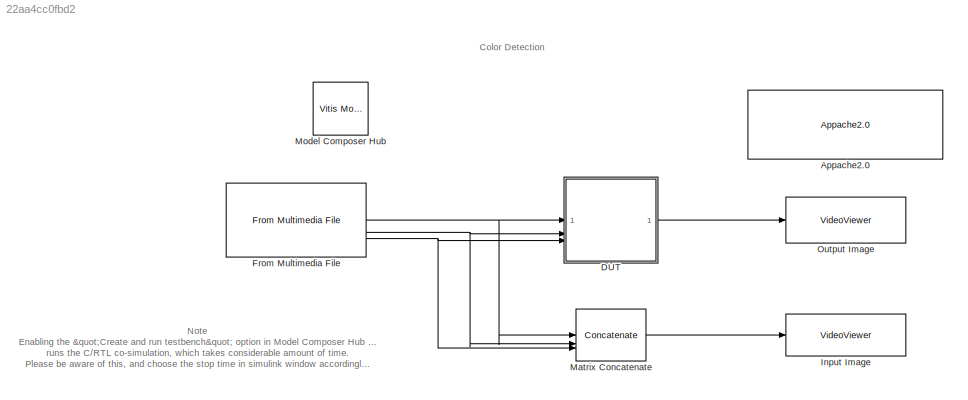
MODEL slx_22aa4cc0fbd2
KIND model
CONFIG AbsTol = auto
CONFIG EnableMultiTasking = off
CONFIG FixedStep = auto
CONFIG MaxStep = auto
CONFIG MinStep = auto
CONFIG PostLoadFcn = xmcHubUpdateInstalledDevice(gcs);
CONFIG RelTol = 1e-3
CONFIG SampleTimeConstraint = Unconstrained
CONFIG SolverName = VariableStepAuto
CONFIG StartTime = 0.0
CONFIG StopTime = 10.0
BLOCK [Reference] Appache2.0  REF=vmcUtilities/Appache2.0
  SourceBlock = vmcUtilities/Appache2.0
  SourceType = DocBlock
  UserDataPersistent = on
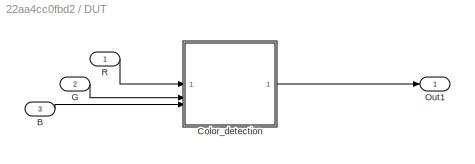
BLOCK [SubSystem] DUT
BLOCK [Inport] DUT/B
  Port = 3
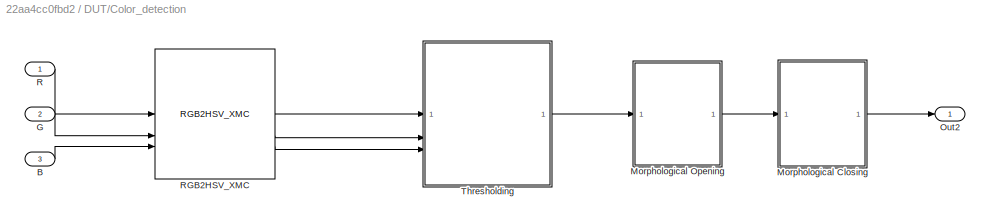
BLOCK [SubSystem] DUT/Color_detection
BLOCK [Inport] DUT/Color_detection/B
  Port = 3
BLOCK [Inport] DUT/Color_detection/G
  Port = 2
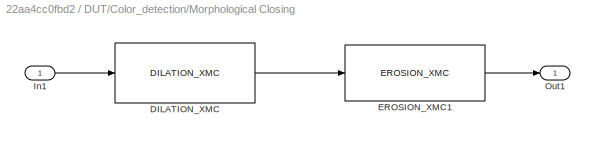
BLOCK [SubSystem] DUT/Color_detection/Morphological Closing
BLOCK [Reference] DUT/Color_detection/Morphological Closing/DILATION_XMC  REF=color_detection_lib/DILATION_XMC  (lib defined in slx_f1d33c2a9f02)
  SourceBlock = color_detection_lib/DILATION_XMC
  SourceType = Import Function
BLOCK [Reference] DUT/Color_detection/Morphological Closing/EROSION_XMC1  REF=color_detection_lib/EROSION_XMC  (lib defined in slx_f1d33c2a9f02)
  SourceBlock = color_detection_lib/EROSION_XMC
  SourceType = Import Function
BLOCK [Inport] DUT/Color_detection/Morphological Closing/In1
BLOCK [Outport] DUT/Color_detection/Morphological Closing/Out1
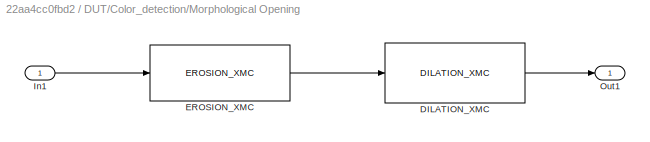
BLOCK [SubSystem] DUT/Color_detection/Morphological Opening
BLOCK [Reference] DUT/Color_detection/Morphological Opening/DILATION_XMC  REF=color_detection_lib/DILATION_XMC  (lib defined in slx_f1d33c2a9f02)
  SourceBlock = color_detection_lib/DILATION_XMC
  SourceType = Import Function
BLOCK [Reference] DUT/Color_detection/Morphological Opening/EROSION_XMC  REF=color_detection_lib/EROSION_XMC  (lib defined in slx_f1d33c2a9f02)
  SourceBlock = color_detection_lib/EROSION_XMC
  SourceType = Import Function
BLOCK [Inport] DUT/Color_detection/Morphological Opening/In1
BLOCK [Outport] DUT/Color_detection/Morphological Opening/Out1
BLOCK [Outport] DUT/Color_detection/Out2
BLOCK [Inport] DUT/Color_detection/R
BLOCK [Reference] DUT/Color_detection/RGB2HSV_XMC  REF=color_detection_lib/RGB2HSV_XMC  (lib defined in slx_f1d33c2a9f02)
  SourceBlock = color_detection_lib/RGB2HSV_XMC
  SourceType = Import Function
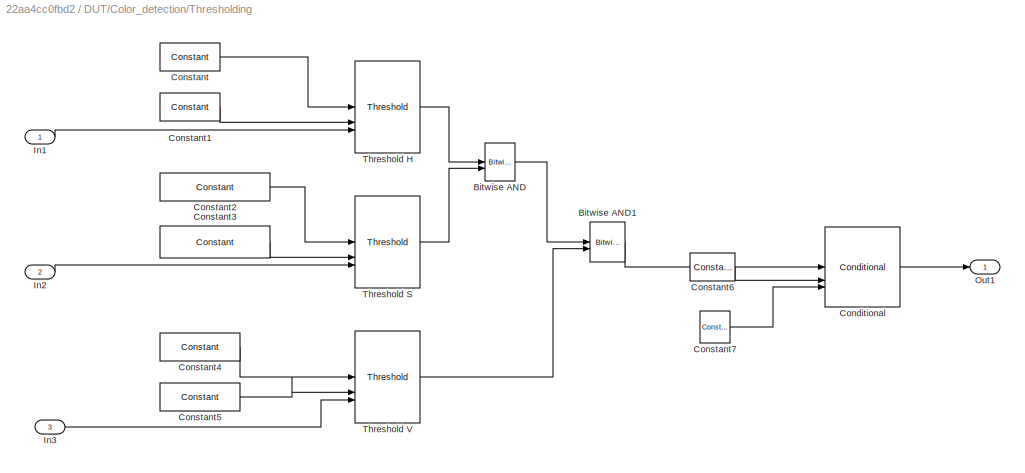
BLOCK [SubSystem] DUT/Color_detection/Thresholding
BLOCK [Reference] DUT/Color_detection/Thresholding/Bitwise AND  REF=hlsBasic/Bitwise AND
  SourceBlock = hlsBasic/Bitwise AND
  SourceType = Bitwise AND
BLOCK [Reference] DUT/Color_detection/Thresholding/Bitwise AND1  REF=hlsBasic/Bitwise AND
  SourceBlock = hlsBasic/Bitwise AND
  SourceType = Bitwise AND
BLOCK [Reference] DUT/Color_detection/Thresholding/Conditional  REF=hlsBasic/Conditional
  SourceBlock = hlsBasic/Conditional
  SourceType = Conditional Operator
BLOCK [Reference] DUT/Color_detection/Thresholding/Constant  REF=hlsBasic/Constant
  SourceBlock = hlsBasic/Constant
  SourceType = Constant
BLOCK [Reference] DUT/Color_detection/Thresholding/Constant1  REF=hlsBasic/Constant
  SourceBlock = hlsBasic/Constant
  SourceType = Constant
BLOCK [Reference] DUT/Color_detection/Thresholding/Constant2  REF=hlsBasic/Constant
  SourceBlock = hlsBasic/Constant
  SourceType = Constant
BLOCK [Reference] DUT/Color_detection/Thresholding/Constant3  REF=hlsBasic/Constant
  SourceBlock = hlsBasic/Constant
  SourceType = Constant
BLOCK [Reference] DUT/Color_detection/Thresholding/Constant4  REF=hlsBasic/Constant
  SourceBlock = hlsBasic/Constant
  SourceType = Constant
BLOCK [Reference] DUT/Color_detection/Thresholding/Constant5  REF=hlsBasic/Constant
  SourceBlock = hlsBasic/Constant
  SourceType = Constant
BLOCK [Reference] DUT/Color_detection/Thresholding/Constant6  REF=hlsBasic/Constant
  SourceBlock = hlsBasic/Constant
  SourceType = Constant
BLOCK [Reference] DUT/Color_detection/Thresholding/Constant7  REF=hlsBasic/Constant
  SourceBlock = hlsBasic/Constant
  SourceType = Constant
BLOCK [Inport] DUT/Color_detection/Thresholding/In1
BLOCK [Inport] DUT/Color_detection/Thresholding/In2
  Port = 2
BLOCK [Inport] DUT/Color_detection/Thresholding/In3
  Port = 3
BLOCK [Outport] DUT/Color_detection/Thresholding/Out1
BLOCK [Reference] DUT/Color_detection/Thresholding/Threshold H  REF=color_detection_lib/Threshold  (lib defined in slx_f1d33c2a9f02)
  SourceBlock = color_detection_lib/Threshold
BLOCK [Reference] DUT/Color_detection/Thresholding/Threshold S  REF=color_detection_lib/Threshold  (lib defined in slx_f1d33c2a9f02)
  SourceBlock = color_detection_lib/Threshold
BLOCK [Reference] DUT/Color_detection/Thresholding/Threshold V  REF=color_detection_lib/Threshold  (lib defined in slx_f1d33c2a9f02)
  SourceBlock = color_detection_lib/Threshold
BLOCK [Inport] DUT/G
  Port = 2
BLOCK [Outport] DUT/Out1
BLOCK [Inport] DUT/R
BLOCK [Reference] From Multimedia File  REF=dspvision/From Multimedia File
  SourceBlock = dspvision/From Multimedia File
  SourceType = From Multimedia File
BLOCK [VideoViewer] Input Image
  FigPos = [425 718 1006 554]
  ScopeSpecificationString = vipscopes.VideoViewerScopeCfg('CurrentConfiguration', extmgr.ConfigurationSet(extmgr.Configuration('Core','General UI',true),extmgr.Configuration('Core','Source UI',true),extmgr.Configuration('Sources','WiredSimulink',true),extmgr.Configuration('Visuals','Video',true),extmgr.Configuration('Tools','Image Navigation Tools',true,'Magnification',0.67),extmgr.Configuration('Tools','Image Tool',true),ex...<+123ch>
  colormapValue = gray(256)
BLOCK [Concatenate] Matrix Concatenate
  ConcatenateDimension = 3
  Mode = Multidimensional array
  NumInputs = 3
BLOCK [Reference] Model Composer Hub  REF=vmcUtilities/Vitis Model Composer Hub
  SourceBlock = vmcUtilities/Vitis Model Composer Hub
  SourceType = VMC Hub
  Tag = genX
  UserDataPersistent = on
BLOCK [VideoViewer] Output Image
  FigPos = [33 747 919 556]
  ScopeSpecificationString = vipscopes.VideoViewerScopeCfg('CurrentConfiguration', extmgr.ConfigurationSet(extmgr.Configuration('Core','General UI',true),extmgr.Configuration('Core','Source UI',true),extmgr.Configuration('Sources','WiredSimulink',true),extmgr.Configuration('Visuals','Video',true),extmgr.Configuration('Tools','Image Navigation Tools',true,'Magnification',0.67),extmgr.Configuration('Tools','Image Tool',true),ex...<+121ch>
  colormapValue = gray(256)
ANNOTATION (root): Note Enabling the "Create and run testbench" option in Model Composer Hub block runs the C/RTL co-simulation, which takes considerable amount of time. Please be aware of this, and choose the stop time in simulink window accordingly.
ANNOTATION (root): Color Detection
LINE DUT/B:1 -> DUT/Color_detection:3
LINE DUT/Color_detection/B:1 -> DUT/Color_detection/RGB2HSV_XMC:3
LINE DUT/Color_detection/G:1 -> DUT/Color_detection/RGB2HSV_XMC:2
LINE DUT/Color_detection/Morphological Closing/DILATION_XMC:1 -> DUT/Color_detection/Morphological Closing/EROSION_XMC1:1
LINE DUT/Color_detection/Morphological Closing/EROSION_XMC1:1 -> DUT/Color_detection/Morphological Closing/Out1:1
LINE DUT/Color_detection/Morphological Closing/In1:1 -> DUT/Color_detection/Morphological Closing/DILATION_XMC:1
LINE DUT/Color_detection/Morphological Closing:1 -> DUT/Color_detection/Out2:1
LINE DUT/Color_detection/Morphological Opening/DILATION_XMC:1 -> DUT/Color_detection/Morphological Opening/Out1:1
LINE DUT/Color_detection/Morphological Opening/EROSION_XMC:1 -> DUT/Color_detection/Morphological Opening/DILATION_XMC:1
LINE DUT/Color_detection/Morphological Opening/In1:1 -> DUT/Color_detection/Morphological Opening/EROSION_XMC:1
LINE DUT/Color_detection/Morphological Opening:1 -> DUT/Color_detection/Morphological Closing:1
LINE DUT/Color_detection/R:1 -> DUT/Color_detection/RGB2HSV_XMC:1
LINE DUT/Color_detection/RGB2HSV_XMC:1 -> DUT/Color_detection/Thresholding:1
LINE DUT/Color_detection/RGB2HSV_XMC:2 -> DUT/Color_detection/Thresholding:2
LINE DUT/Color_detection/RGB2HSV_XMC:3 -> DUT/Color_detection/Thresholding:3
LINE DUT/Color_detection/Thresholding/Bitwise AND1:1 -> DUT/Color_detection/Thresholding/Conditional:1
LINE DUT/Color_detection/Thresholding/Bitwise AND:1 -> DUT/Color_detection/Thresholding/Bitwise AND1:1
LINE DUT/Color_detection/Thresholding/Conditional:1 -> DUT/Color_detection/Thresholding/Out1:1
LINE DUT/Color_detection/Thresholding/Constant1:1 -> DUT/Color_detection/Thresholding/Threshold H:2
LINE DUT/Color_detection/Thresholding/Constant2:1 -> DUT/Color_detection/Thresholding/Threshold S:1
LINE DUT/Color_detection/Thresholding/Constant3:1 -> DUT/Color_detection/Thresholding/Threshold S:2
LINE DUT/Color_detection/Thresholding/Constant4:1 -> DUT/Color_detection/Thresholding/Threshold V:1
LINE DUT/Color_detection/Thresholding/Constant5:1 -> DUT/Color_detection/Thresholding/Threshold V:2
LINE DUT/Color_detection/Thresholding/Constant6:1 -> DUT/Color_detection/Thresholding/Conditional:2
LINE DUT/Color_detection/Thresholding/Constant7:1 -> DUT/Color_detection/Thresholding/Conditional:3
LINE DUT/Color_detection/Thresholding/Constant:1 -> DUT/Color_detection/Thresholding/Threshold H:1
LINE DUT/Color_detection/Thresholding/In1:1 -> DUT/Color_detection/Thresholding/Threshold H:3
LINE DUT/Color_detection/Thresholding/In2:1 -> DUT/Color_detection/Thresholding/Threshold S:3
LINE DUT/Color_detection/Thresholding/In3:1 -> DUT/Color_detection/Thresholding/Threshold V:3
LINE DUT/Color_detection/Thresholding/Threshold H:1 -> DUT/Color_detection/Thresholding/Bitwise AND:1
LINE DUT/Color_detection/Thresholding/Threshold S:1 -> DUT/Color_detection/Thresholding/Bitwise AND:2
LINE DUT/Color_detection/Thresholding/Threshold V:1 -> DUT/Color_detection/Thresholding/Bitwise AND1:2
LINE DUT/Color_detection/Thresholding:1 -> DUT/Color_detection/Morphological Opening:1
LINE DUT/Color_detection:1 -> DUT/Out1:1
LINE DUT/G:1 -> DUT/Color_detection:2
LINE DUT/R:1 -> DUT/Color_detection:1
LINE DUT:1 -> Output Image:1
NET From Multimedia File:1 -> DUT:1, Matrix Concatenate:1
NET From Multimedia File:2 -> DUT:2, Matrix Concatenate:2
NET From Multimedia File:3 -> DUT:3, Matrix Concatenate:3
LINE Matrix Concatenate:1 -> Input Image:1
note: NET lines group one-source signal fan-out (src -> all destinations, sorted); 1:1 wires keep LINE
